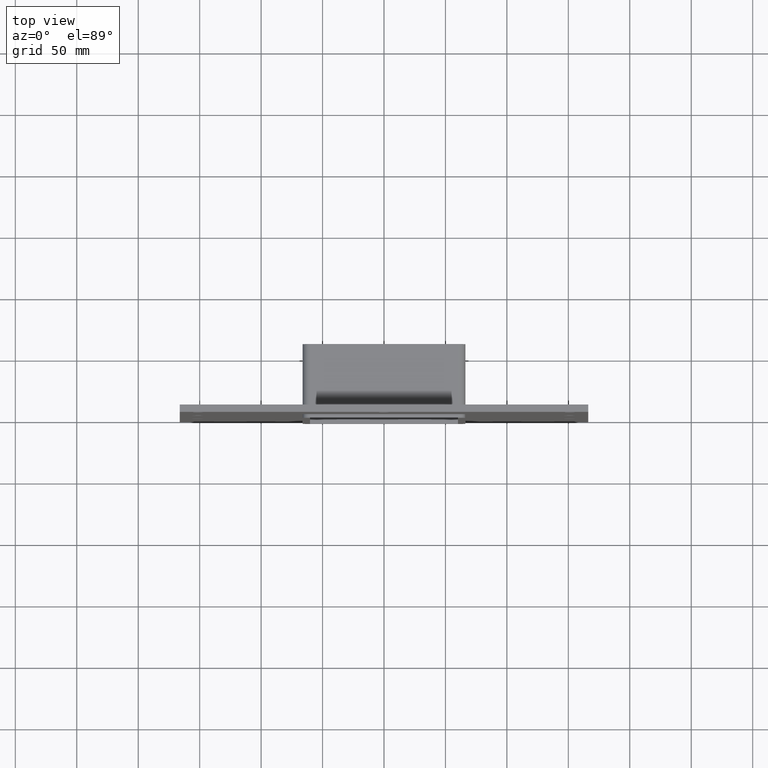
[diagram: clean part render]
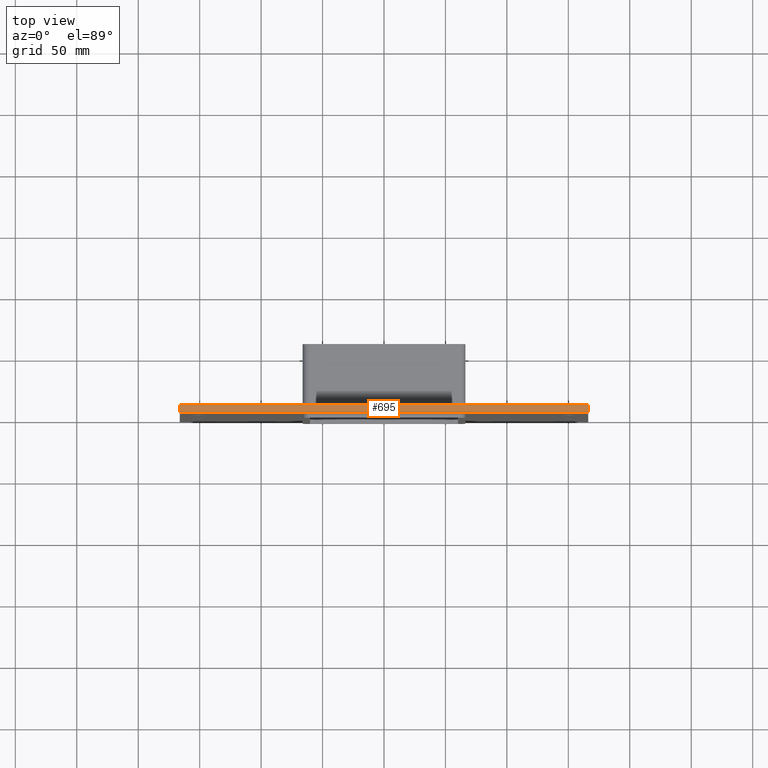
[diagram: same view with one face highlighted and labeled with its STEP entity id]
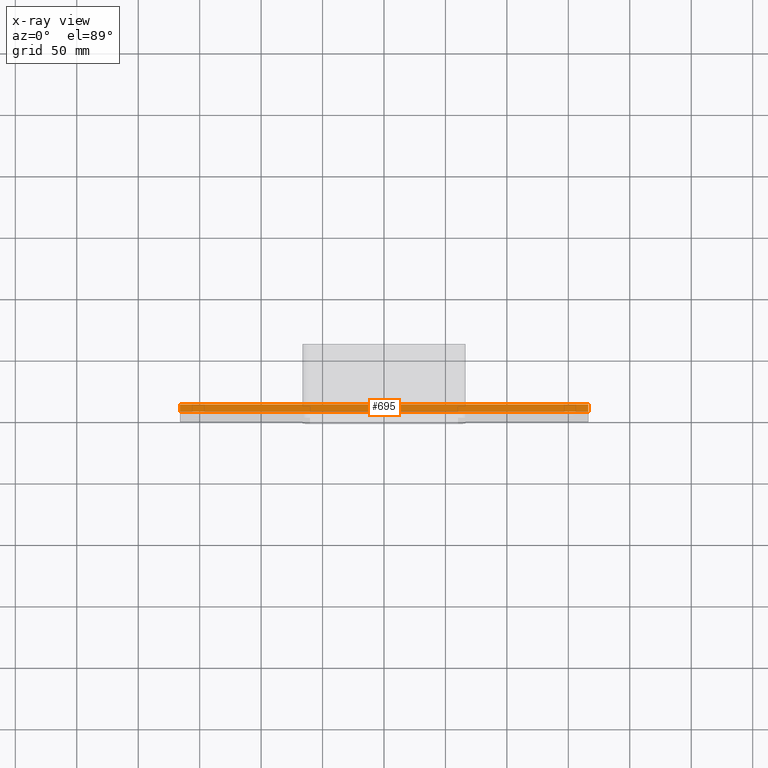
[diagram: x-ray of the same camera — body ghosted, the highlighted face saturated]
A machine part, top view. The second image highlights one B-rep face of the part: STEP entity #695.
The next image is the same camera in x-ray: the body ghosted, the highlighted face saturated — about 0% of this face is hidden behind the body in this view.
In plain terms, the highlighted planar face has unit normal (0, 0, 1).
Its self-contained STEP definition (entity closure, byte-faithful):
#353=CARTESIAN_POINT('',(-166.25,6.000000000000001,245.0));
#354=VERTEX_POINT('',#353);
#355=CARTESIAN_POINT('',(166.25,6.000000000000001,245.0));
#356=VERTEX_POINT('',#355);
#357=CARTESIAN_POINT('',(-166.25,6.000000000000001,245.0));
#358=DIRECTION('',(1.0,0.0,0.0));
#359=VECTOR('',#358,332.5);
#360=LINE('',#357,#359);
#361=EDGE_CURVE('',#354,#356,#360,.T.);
#493=CARTESIAN_POINT('',(-166.25,0.0,245.0));
#494=VERTEX_POINT('',#493);
#495=CARTESIAN_POINT('',(166.25,0.0,245.0));
#496=VERTEX_POINT('',#495);
#497=CARTESIAN_POINT('',(-166.25,0.0,245.0));
#498=DIRECTION('',(1.0,0.0,0.0));
#499=VECTOR('',#498,332.5);
#500=LINE('',#497,#499);
#501=EDGE_CURVE('',#494,#496,#500,.T.);
#634=CARTESIAN_POINT('',(-166.25,0.0,245.0));
#635=DIRECTION('',(0.0,1.0,0.0));
#636=VECTOR('',#635,6.000000000000001);
#637=LINE('',#634,#636);
#638=EDGE_CURVE('',#494,#354,#637,.T.);
#675=CARTESIAN_POINT('',(166.25,0.0,245.0));
#676=DIRECTION('',(0.0,1.0,0.0));
#677=VECTOR('',#676,6.000000000000001);
#678=LINE('',#675,#677);
#679=EDGE_CURVE('',#496,#356,#678,.T.);
#684=CARTESIAN_POINT('',(-166.25,0.0,245.0));
#685=DIRECTION('',(0.0,0.0,1.0));
#686=DIRECTION('',(1.0,0.0,0.0));
#687=AXIS2_PLACEMENT_3D('',#684,#685,#686);
#688=PLANE('',#687);
#689=ORIENTED_EDGE('',*,*,#501,.T.);
#690=ORIENTED_EDGE('',*,*,#679,.T.);
#691=ORIENTED_EDGE('',*,*,#361,.F.);
#692=ORIENTED_EDGE('',*,*,#638,.F.);
#693=EDGE_LOOP('',(#689,#690,#691,#692));
#694=FACE_OUTER_BOUND('',#693,.T.);
#695=ADVANCED_FACE('',(#694),#688,.T.);